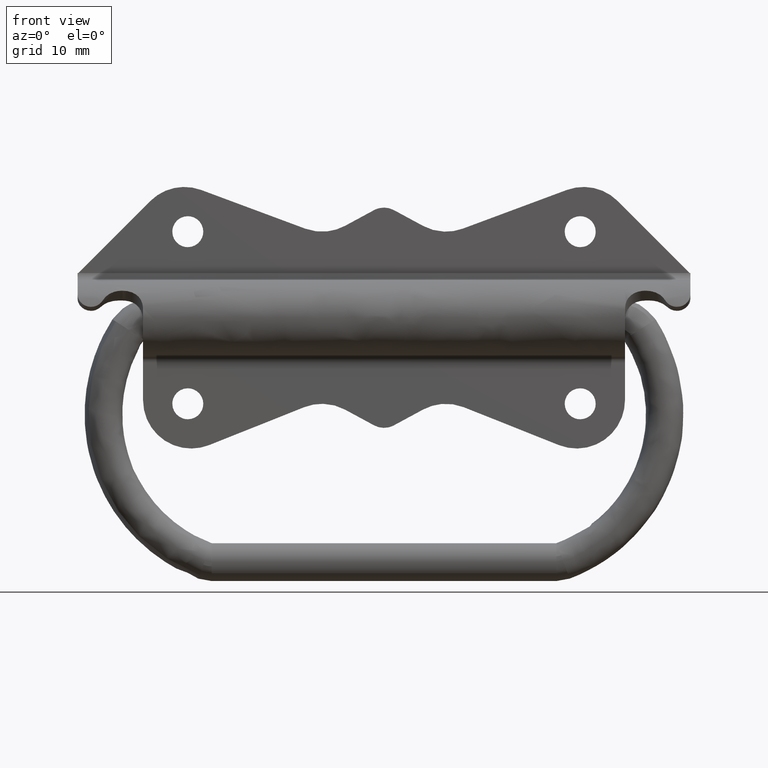
[diagram: clean part render]
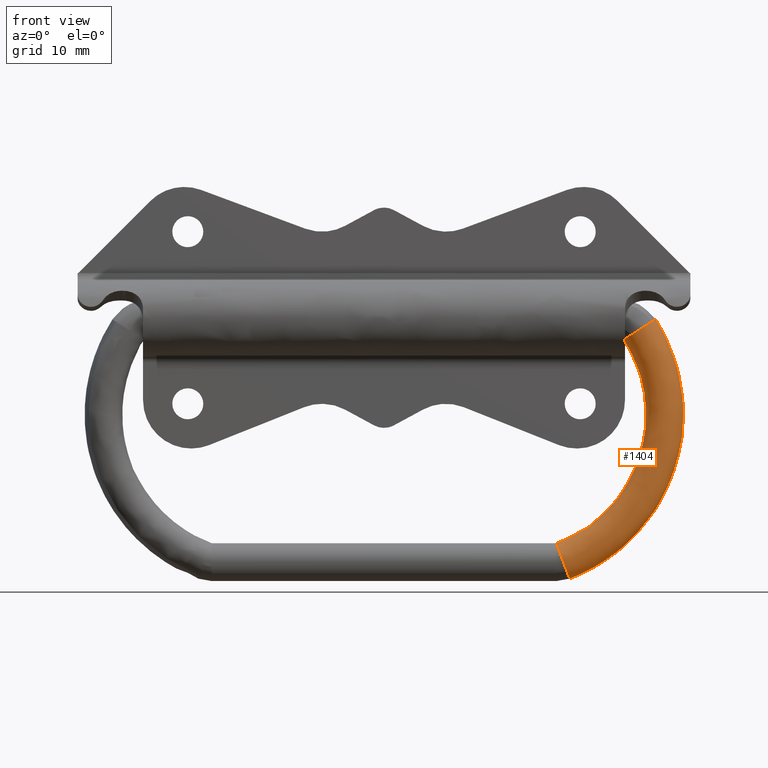
[diagram: same view with one face highlighted and labeled with its STEP entity id]
A machine part, front view. The second image highlights one B-rep face of the part: STEP entity #1404.
In plain terms, the highlighted face is a freeform B-spline surface patch.
Its self-contained STEP definition (entity closure, byte-faithful):
#1143=CARTESIAN_POINT('',(25.107062470250320,1.012342576570011,-32.927559504139282));
#1144=VERTEX_POINT('',#1143);
#1152=CARTESIAN_POINT('',(25.483781816361251,2.313601311948501,-33.929437347172943));
#1153=VERTEX_POINT('',#1152);
#1154=CARTESIAN_POINT('',(25.483781816361251,2.313601311948501,-33.929437347172943));
#1155=CARTESIAN_POINT('',(25.404524848177569,2.169058993265622,-33.718654932390272));
#1156=CARTESIAN_POINT('',(25.251538252616552,1.789747837231061,-33.311789988713763));
#1157=CARTESIAN_POINT('',(25.146284470770489,1.294400293339563,-33.031869619302348));
#1158=CARTESIAN_POINT('',(25.107062470250320,1.012342576570011,-32.927559504139282));
#1159=B_SPLINE_CURVE_WITH_KNOTS('',3,(#1154,#1155,#1156,#1157,#1158),.UNSPECIFIED.,.F.,.U.,(4,1,4),(0.000000029187091,0.802737095599065,1.712479997864167),.UNSPECIFIED.);
#1160=EDGE_CURVE('',#1153,#1144,#1159,.T.);
#1162=CARTESIAN_POINT('',(26.789998209686718,1.616409443891396,-37.403295254511853));
#1163=VERTEX_POINT('',#1162);
#1176=CARTESIAN_POINT('',(26.974845990783908,1.629855E-015,-37.894894448926472));
#1177=VERTEX_POINT('',#1176);
#1178=CARTESIAN_POINT('',(26.974845990783908,1.629855E-015,-37.894894448926472));
#1179=CARTESIAN_POINT('',(26.974884505515270,0.269997419612921,-37.894996878129433));
#1180=CARTESIAN_POINT('',(26.944743830937551,0.845874969489150,-37.814838321432347));
#1181=CARTESIAN_POINT('',(26.853359863710111,1.368972501936879,-37.571804380722263));
#1182=CARTESIAN_POINT('',(26.789998209686718,1.616409443891396,-37.403295254511853));
#1183=B_SPLINE_CURVE_WITH_KNOTS('',3,(#1178,#1179,#1180,#1181,#1182),.UNSPECIFIED.,.F.,.U.,(4,1,4),(0.000000030521789,0.809967289365416,1.727903711643530),.UNSPECIFIED.);
#1184=EDGE_CURVE('',#1177,#1163,#1183,.T.);
#1186=CARTESIAN_POINT('',(25.702722683985609,-2.610598369610361,-34.511706467005759));
#1187=VERTEX_POINT('',#1186);
#1188=CARTESIAN_POINT('',(25.702722683985609,-2.610598369610361,-34.511706467005759));
#1189=CARTESIAN_POINT('',(25.802227895178358,-2.704401316872357,-34.776338702350863));
#1190=CARTESIAN_POINT('',(25.992993611427408,-2.790072093240257,-35.283676532413693));
#1191=CARTESIAN_POINT('',(26.269173044069468,-2.681028772336388,-36.018170533005303));
#1192=CARTESIAN_POINT('',(26.521157245223780,-2.375014157018322,-36.688317771239127));
#1193=CARTESIAN_POINT('',(26.725382333454910,-1.894153576034480,-37.231450548138064));
#1194=CARTESIAN_POINT('',(26.875609579239931,-1.277572018896233,-37.630977079980198));
#1195=CARTESIAN_POINT('',(26.957361665247159,-0.649868491487063,-37.848395213830663));
#1196=CARTESIAN_POINT('',(26.974855862658160,-0.203079167749837,-37.894920702811611));
#1197=CARTESIAN_POINT('',(26.974845990783908,1.629855E-015,-37.894894448926472));
#1198=B_SPLINE_CURVE_WITH_KNOTS('',3,(#1188,#1189,#1190,#1191,#1192,#1193,#1194,#1195,#1196,#1197),.UNSPECIFIED.,.F.,.U.,(4,1,1,1,1,1,1,4),(0.000000255455290,0.893592641950205,1.624729879233029,2.355885863520090,3.208790104922623,3.858705170466914,4.589857088054170,5.199098050099735),.UNSPECIFIED.);
#1199=EDGE_CURVE('',#1187,#1177,#1198,.T.);
#1236=CARTESIAN_POINT('',(25.039094894732699,9.778690E-016,-32.746800850890729));
#1237=VERTEX_POINT('',#1236);
#1238=CARTESIAN_POINT('',(25.039094894732699,9.778690E-016,-32.746800850890729));
#1239=CARTESIAN_POINT('',(25.038983666262968,-0.340502051040154,-32.746505040868918));
#1240=CARTESIAN_POINT('',(25.080629803503520,-0.967389257091028,-32.857262159084073));
#1241=CARTESIAN_POINT('',(25.234933433644560,-1.719610482920835,-33.267629759466892));
#1242=CARTESIAN_POINT('',(25.442418889440169,-2.279277505683220,-33.819433424301273));
#1243=CARTESIAN_POINT('',(25.606912349233060,-2.520620030275472,-34.256900684871553));
#1244=CARTESIAN_POINT('',(25.702722683985609,-2.610598369610361,-34.511706467005759));
#1245=B_SPLINE_CURVE_WITH_KNOTS('',3,(#1238,#1239,#1240,#1241,#1242,#1243,#1244),.UNSPECIFIED.,.F.,.U.,(4,1,1,1,4),(0.000000129499237,1.021370776841056,1.881441177321528,2.580287856719253,3.440383765793081),.UNSPECIFIED.);
#1246=EDGE_CURVE('',#1237,#1187,#1245,.T.);
#1248=CARTESIAN_POINT('',(25.107062470250320,1.012342576570011,-32.927559504139282));
#1249=CARTESIAN_POINT('',(25.062210342345271,0.691085016853756,-32.808276005004551));
#1250=CARTESIAN_POINT('',(25.039040111615009,0.345599507213227,-32.746655156086959));
#1251=CARTESIAN_POINT('',(25.039094894732699,9.778690E-016,-32.746800850890729));
#1252=B_SPLINE_CURVE_WITH_KNOTS('',3,(#1248,#1249,#1250,#1251),.UNSPECIFIED.,.F.,.U.,(4,4),(0.000000012035214,1.036749613171352),.UNSPECIFIED.);
#1253=EDGE_CURVE('',#1144,#1237,#1252,.T.);
#1260=CARTESIAN_POINT('',(34.997963999017905,2.346578459188237,-1.166054837604760));
#1261=CARTESIAN_POINT('',(53.666054950167769,2.346578459188238,-25.840201702515770));
#1262=CARTESIAN_POINT('',(23.959622116933570,2.346578459188240,-34.491154921447567));
#1263=CARTESIAN_POINT('',(34.977412622147334,2.330020441739758,-1.181603702361538));
#1264=CARTESIAN_POINT('',(53.622932930565312,2.330020441739762,-25.825918306702391));
#1265=CARTESIAN_POINT('',(23.952416639845932,2.330020441739761,-34.466412096498892));
#1266=CARTESIAN_POINT('',(34.904229531670104,2.271057633715442,-1.236972935453759));
#1267=CARTESIAN_POINT('',(53.469376179501801,2.271057633715445,-25.775055386192726));
#1268=CARTESIAN_POINT('',(23.926758063052937,2.271057633715447,-34.378303333359391));
#1269=CARTESIAN_POINT('',(34.853452347028963,2.224796734531104,-1.275390194875703));
#1270=CARTESIAN_POINT('',(53.362832721842359,2.224796734531108,-25.739764776172489));
#1271=CARTESIAN_POINT('',(23.908955176034198,2.224796734531108,-34.317170154844170));
#1272=CARTESIAN_POINT('',(33.079238654020067,0.608387290726804,-2.617733772921222));
#1273=CARTESIAN_POINT('',(49.640080804503825,0.608387290726806,-24.506669952679648));
#1274=CARTESIAN_POINT('',(23.286901666235437,0.608387290726807,-32.181106031057794));
#1275=CARTESIAN_POINT('',(34.368280355760469,-1.616409443804301,-1.642464076276268));
#1276=CARTESIAN_POINT('',(52.344818393663772,-1.616409443804298,-25.402565783010477));
#1277=CARTESIAN_POINT('',(23.738849995799235,-1.616409443804298,-33.733047459535108));
#1278=CARTESIAN_POINT('',(35.657322057500870,-3.841206178335407,-0.667194379631316));
#1279=CARTESIAN_POINT('',(55.049555982823705,-3.841206178335402,-26.298461613341281));
#1280=CARTESIAN_POINT('',(24.190798325363048,-3.841206178335402,-35.284988888012442));
#1281=CARTESIAN_POINT('',(37.431535750509759,-2.224796734531105,0.675149198414205));
#1282=CARTESIAN_POINT('',(58.772307900162218,-2.224796734531104,-27.531556436834116));
#1283=CARTESIAN_POINT('',(24.812851835161805,-2.224796734531101,-37.421053011798818));
#1284=CARTESIAN_POINT('',(39.205749443518634,-0.608387290726806,2.017492776459723));
#1285=CARTESIAN_POINT('',(62.495059817500710,-0.608387290726803,-28.764651260326964));
#1286=CARTESIAN_POINT('',(25.434905344960573,-0.608387290726802,-39.557117135585194));
#1287=CARTESIAN_POINT('',(37.901984737346162,1.641820330154060,1.031083874584395));
#1288=CARTESIAN_POINT('',(59.759429617605932,1.641820330154063,-27.858522806596259));
#1289=CARTESIAN_POINT('',(24.977795012297669,1.641820330154064,-37.987449949671955));
#1290=CARTESIAN_POINT('',(37.887400386281712,1.666991910390434,1.020049572420887));
#1291=CARTESIAN_POINT('',(59.728827936927793,1.666991910390437,-27.848386548561272));
#1292=CARTESIAN_POINT('',(24.972681622178147,1.666991910390438,-37.969891123922736));
#1300=(BOUNDED_SURFACE()B_SPLINE_SURFACE(2,2,((#1260,#1263,#1266,#1269,#1272,#1275,#1278,#1281,#1284,#1287,#1290),(#1261,#1264,#1267,#1270,#1273,#1276,#1279,#1282,#1285,#1288,#1291),(#1262,#1265,#1268,#1271,#1274,#1277,#1280,#1283,#1286,#1289,#1292)),.UNSPECIFIED.,.F.,.F.,.U.)B_SPLINE_SURFACE_WITH_KNOTS((3,3),(3,1,2,2,2,1,3),(0.0,53.522206932414207),(0.0,0.069280016057796,0.251533809691031,4.807882995795088,9.364232181899144,13.920581368003200,13.994528442983119),.UNSPECIFIED.)GEOMETRIC_REPRESENTATION_ITEM()RATIONAL_B_SPLINE_SURFACE(((0.889763931456898,0.893524899429526,0.907179783710900,0.917934039676403,0.649077384137146,0.917934039676403,0.649077384137146,0.917934039676403,0.649077384137146,0.922297437312091,0.926660834947778),(0.504617211178962,0.506750191739967,0.514494369022762,0.520593495388483,0.368115190830804,0.520593495388483,0.368115190830804,0.520593495388483,0.368115190830804,0.523068135535539,0.525542775682595),(0.889217844614101,0.892976504317026,0.906623008001725,0.917370663612370,0.648679017101910,0.917370663612370,0.648679017101910,0.917370663612370,0.648679017101910,0.921731383241056,0.926092102869741)))REPRESENTATION_ITEM('')SURFACE());
#1301=ORIENTED_EDGE('',*,*,#1160,.T.);
#1302=ORIENTED_EDGE('',*,*,#1253,.T.);
#1303=ORIENTED_EDGE('',*,*,#1246,.T.);
#1304=ORIENTED_EDGE('',*,*,#1199,.T.);
#1305=ORIENTED_EDGE('',*,*,#1184,.T.);
#1306=CARTESIAN_POINT('',(39.006515178013302,1.616409443832346,-0.518433547207041));
#1307=VERTEX_POINT('',#1306);
#1308=CARTESIAN_POINT('',(39.006515178013302,1.616409443832346,-0.518433547207041));
#1309=CARTESIAN_POINT('',(39.947387389000049,1.616409443830769,-1.981042119870566));
#1310=CARTESIAN_POINT('',(41.075339987335383,1.616409443829209,-4.219117158282519));
#1311=CARTESIAN_POINT('',(42.215949015900492,1.616409443828471,-7.692433298274067));
#1312=CARTESIAN_POINT('',(42.800068258647130,1.616409443828827,-10.538595507554890));
#1313=CARTESIAN_POINT('',(43.043429035646220,1.616409443830435,-13.839677354060900));
#1314=CARTESIAN_POINT('',(42.883035548559697,1.616409443832879,-16.740724272470189));
#1315=CARTESIAN_POINT('',(42.401603798954731,1.616409443836151,-19.543051890223861));
#1316=CARTESIAN_POINT('',(41.717541874890259,1.616409443839671,-22.004335692134180));
#1317=CARTESIAN_POINT('',(40.665100322913943,1.616409443844469,-24.646811294913618));
#1318=CARTESIAN_POINT('',(39.205732428826543,1.616409443850298,-27.357312813362160));
#1319=CARTESIAN_POINT('',(37.298512696627697,1.616409443857404,-29.993994244809009));
#1320=CARTESIAN_POINT('',(35.340803274761342,1.616409443864189,-32.059780791203892));
#1321=CARTESIAN_POINT('',(33.011790651086258,1.616409443871975,-34.067044470692551));
#1322=CARTESIAN_POINT('',(30.303908061836118,1.616409443880684,-35.877918876409922));
#1323=CARTESIAN_POINT('',(27.929462220032949,1.616409443887966,-36.974894419636783));
#1324=CARTESIAN_POINT('',(26.789998209686718,1.616409443891396,-37.403295254511853));
#1325=B_SPLINE_CURVE_WITH_KNOTS('',3,(#1308,#1309,#1310,#1311,#1312,#1313,#1314,#1315,#1316,#1317,#1318,#1319,#1320,#1321,#1322,#1323,#1324),.UNSPECIFIED.,.F.,.U.,(4,1,1,1,1,1,1,1,1,1,1,1,1,1,4),(0.000000072862619,5.217211973537943,7.478014565133286,10.956160987912130,13.912599977031251,17.390748057108372,19.651534545745388,22.434009983717321,25.042615346077248,28.172959353794621,31.651128198867919,34.781470926820077,36.694446425090362,40.868257805930440,44.520273617651270),.UNSPECIFIED.);
#1326=EDGE_CURVE('',#1307,#1163,#1325,.T.);
#1327=ORIENTED_EDGE('',*,*,#1326,.F.);
#1328=CARTESIAN_POINT('',(39.448268137378008,-4.687984E-017,-0.234368778231483));
#1329=VERTEX_POINT('',#1328);
#1330=CARTESIAN_POINT('',(39.448268137378008,-4.687984E-017,-0.234368778231483));
#1331=CARTESIAN_POINT('',(39.448436754425089,0.305995340856101,-0.234260350746073));
#1332=CARTESIAN_POINT('',(39.366519960427482,0.881817108603974,-0.286936115942308));
#1333=CARTESIAN_POINT('',(39.140067510222813,1.398036707855085,-0.432554071832772));
#1334=CARTESIAN_POINT('',(39.006515178013302,1.616409443832346,-0.518433547207041));
#1335=B_SPLINE_CURVE_WITH_KNOTS('',3,(#1330,#1331,#1332,#1333,#1334),.UNSPECIFIED.,.F.,.U.,(4,1,4),(0.000000030521989,0.917936452759866,1.727903711568115),.UNSPECIFIED.);
#1336=EDGE_CURVE('',#1329,#1307,#1335,.T.);
#1337=ORIENTED_EDGE('',*,*,#1336,.F.);
#1338=CARTESIAN_POINT('',(38.894851292834872,-1.784901653159094,-0.590237878022557));
#1339=VERTEX_POINT('',#1338);
#1340=CARTESIAN_POINT('',(38.894851292834872,-1.784901653159094,-0.590237878022557));
#1341=CARTESIAN_POINT('',(39.038536055217243,-1.584857958206995,-0.497842846055412));
#1342=CARTESIAN_POINT('',(39.231061239099994,-1.221697059758556,-0.374041475441213));
#1343=CARTESIAN_POINT('',(39.408792138611467,-0.606988024530451,-0.259753419633200));
#1344=CARTESIAN_POINT('',(39.448309476312062,-0.222575037518985,-0.234342195648441));
#1345=CARTESIAN_POINT('',(39.448268137378008,-4.687984E-017,-0.234368778231483));
#1346=B_SPLINE_CURVE_WITH_KNOTS('',3,(#1340,#1341,#1342,#1343,#1344,#1345),.UNSPECIFIED.,.F.,.U.,(4,1,1,4),(0.000000040598497,0.789145953994291,1.274750126832668,1.942479268877742),.UNSPECIFIED.);
#1347=EDGE_CURVE('',#1339,#1329,#1346,.T.);
#1348=ORIENTED_EDGE('',*,*,#1347,.F.);
#1349=CARTESIAN_POINT('',(35.847139288101211,-2.284138722498726,-2.550038229826257));
#1350=VERTEX_POINT('',#1349);
#1351=CARTESIAN_POINT('',(35.847139288101211,-2.284138722498726,-2.550038229826257));
#1352=CARTESIAN_POINT('',(36.094534318479887,-2.481787522937855,-2.390953360434368));
#1353=CARTESIAN_POINT('',(36.506333224633593,-2.686607129340849,-2.126150243095528));
#1354=CARTESIAN_POINT('',(37.153474700738492,-2.773997065306487,-1.710012468440824));
#1355=CARTESIAN_POINT('',(37.751151823786500,-2.692694152635520,-1.325682244948278));
#1356=CARTESIAN_POINT('',(38.386162113111787,-2.364690119548937,-0.917345306366793));
#1357=CARTESIAN_POINT('',(38.746996331063407,-1.991073250450352,-0.685314514751711));
#1358=CARTESIAN_POINT('',(38.894851292834872,-1.784901653159094,-0.590237878022557));
#1359=B_SPLINE_CURVE_WITH_KNOTS('',3,(#1351,#1352,#1353,#1354,#1355,#1356,#1357,#1358),.UNSPECIFIED.,.F.,.U.,(4,1,1,1,1,4),(0.000000133418077,1.062912051639982,1.563104621470554,2.313365619812605,3.188727202136756,4.001539623441062),.UNSPECIFIED.);
#1360=EDGE_CURVE('',#1350,#1339,#1359,.T.);
#1361=ORIENTED_EDGE('',*,*,#1360,.F.);
#1362=CARTESIAN_POINT('',(34.822171088139491,-2.015008E-016,-3.209133658188667));
#1363=VERTEX_POINT('',#1362);
#1364=CARTESIAN_POINT('',(34.822171088139491,-2.015008E-016,-3.209133658188667));
#1365=CARTESIAN_POINT('',(34.821893044036933,-0.351041282338163,-3.209312451635089));
#1366=CARTESIAN_POINT('',(34.911594089223698,-0.898245926190557,-3.151631102297341));
#1367=CARTESIAN_POINT('',(35.269396975843193,-1.695610243680799,-2.921549577002798));
#1368=CARTESIAN_POINT('',(35.601728571980587,-2.088951990068836,-2.707847107284287));
#1369=CARTESIAN_POINT('',(35.847139288101211,-2.284138722498726,-2.550038229826257));
#1370=B_SPLINE_CURVE_WITH_KNOTS('',3,(#1364,#1365,#1366,#1367,#1368,#1369),.UNSPECIFIED.,.F.,.U.,(4,1,1,4),(0.000000074429477,1.052938042653881,1.642574869249610,2.695512837474010),.UNSPECIFIED.);
#1371=EDGE_CURVE('',#1363,#1350,#1370,.T.);
#1372=ORIENTED_EDGE('',*,*,#1371,.F.);
#1373=CARTESIAN_POINT('',(35.884892870868839,2.313601311981334,-2.525761173193986));
#1374=VERTEX_POINT('',#1373);
#1375=CARTESIAN_POINT('',(35.884892870868839,2.313601311981334,-2.525761173193986));
#1376=CARTESIAN_POINT('',(35.682189010634012,2.158897689334555,-2.656107838650409));
#1377=CARTESIAN_POINT('',(35.308850914295412,1.763724703725129,-2.896179122390264));
#1378=CARTESIAN_POINT('',(34.918523988080572,0.959204355407173,-3.147174901212569));
#1379=CARTESIAN_POINT('',(34.821949037481680,0.329369136972441,-3.209276445616636));
#1380=CARTESIAN_POINT('',(34.822171088139491,-2.015008E-016,-3.209133658188667));
#1381=B_SPLINE_CURVE_WITH_KNOTS('',3,(#1375,#1376,#1377,#1378,#1379,#1380),.UNSPECIFIED.,.F.,.U.,(4,1,1,4),(0.000000072650798,0.859130849538350,1.761198613992554,2.749206567705016),.UNSPECIFIED.);
#1382=EDGE_CURVE('',#1374,#1363,#1381,.T.);
#1383=ORIENTED_EDGE('',*,*,#1382,.F.);
#1384=CARTESIAN_POINT('',(35.884892870868839,2.313601311981334,-2.525761173193986));
#1385=CARTESIAN_POINT('',(36.445490658424873,2.313601311981285,-3.397505260338617));
#1386=CARTESIAN_POINT('',(37.580922642568453,2.313601311980944,-5.483950010512362));
#1387=CARTESIAN_POINT('',(38.596605574684830,2.313601311979868,-8.437253377262548));
#1388=CARTESIAN_POINT('',(39.123730008351750,2.313601311978401,-11.254870250682989));
#1389=CARTESIAN_POINT('',(39.344635185665013,2.313601311976582,-14.113372476900279));
#1390=CARTESIAN_POINT('',(39.107215148596111,2.313601311974020,-17.376541940978662));
#1391=CARTESIAN_POINT('',(38.163959489264492,2.313601311970454,-21.121631726518270));
#1392=CARTESIAN_POINT('',(36.714645009905873,2.313601311966558,-24.330335760056681));
#1393=CARTESIAN_POINT('',(35.031836893126197,2.313601311963360,-26.835604671394620));
#1394=CARTESIAN_POINT('',(33.332412043211257,2.313601311959944,-28.827692251357760));
#1395=CARTESIAN_POINT('',(31.557969669051090,2.313601311957190,-30.479446959637411));
#1396=CARTESIAN_POINT('',(28.910827524114350,2.313601311953023,-32.386388680789473));
#1397=CARTESIAN_POINT('',(26.869795058686449,2.313601311950322,-33.408541107453878));
#1398=CARTESIAN_POINT('',(25.483781816361251,2.313601311948501,-33.929437347172943));
#1399=B_SPLINE_CURVE_WITH_KNOTS('',3,(#1384,#1385,#1386,#1387,#1388,#1389,#1390,#1391,#1392,#1393,#1394,#1395,#1396,#1397,#1398),.UNSPECIFIED.,.F.,.U.,(4,1,1,1,1,1,1,1,1,1,1,1,4),(0.000000082268549,3.109337617488251,7.107083216817753,9.328047169684623,11.697084126836440,15.694811820728660,19.100246401635719,23.246076154022710,26.207371683885359,28.132206108164009,31.093507854463649,33.462522740819907,37.904446191567310),.UNSPECIFIED.);
#1400=EDGE_CURVE('',#1374,#1153,#1399,.T.);
#1401=ORIENTED_EDGE('',*,*,#1400,.T.);
#1402=EDGE_LOOP('',(#1301,#1302,#1303,#1304,#1305,#1327,#1337,#1348,#1361,#1372,#1383,#1401));
#1403=FACE_OUTER_BOUND('',#1402,.T.);
#1404=ADVANCED_FACE('',(#1403),#1300,.T.);